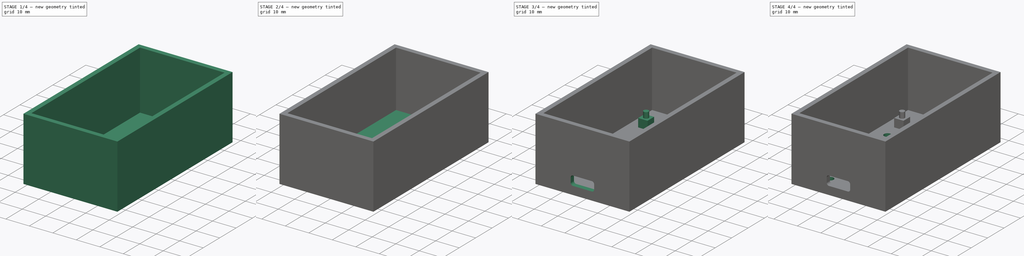
[diagram: build sequence overview — one tinted view per stage of 4, left to right]
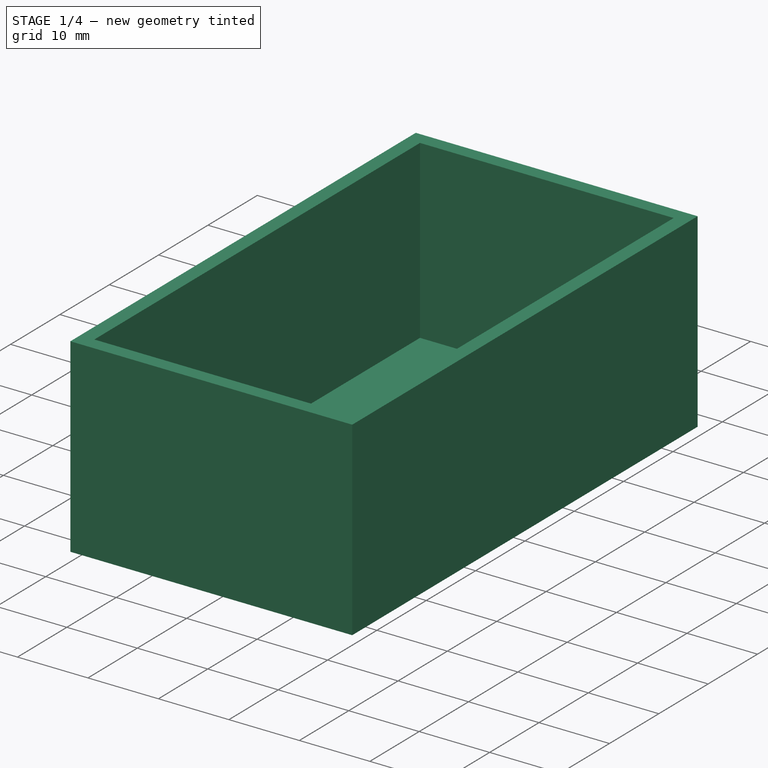
[diagram: stage 1 of 4 — iso view after this stage's code; geometry added in this stage tinted green]
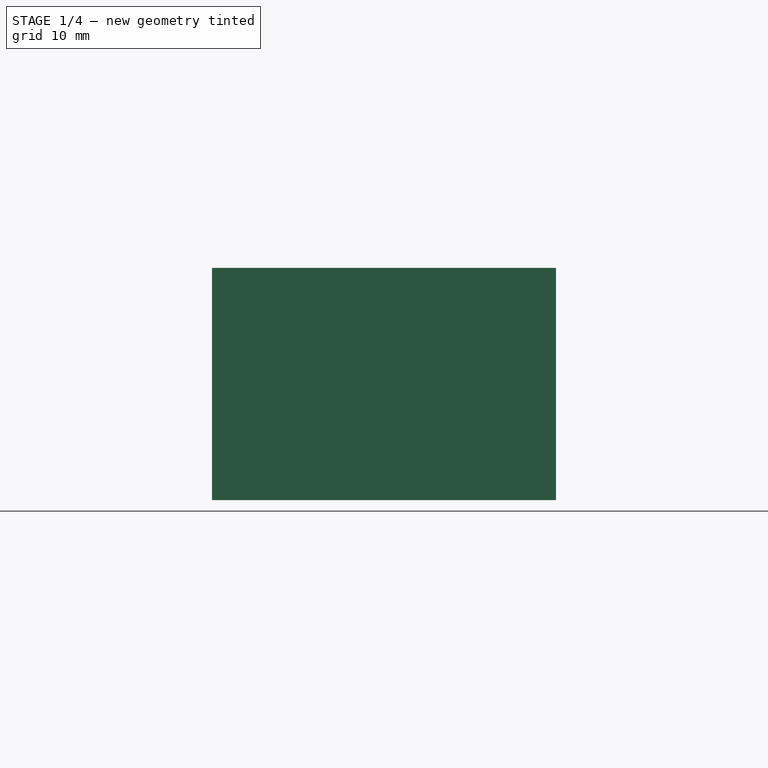
[diagram: stage 1 of 4 — front view after this stage's code; geometry added in this stage tinted green]
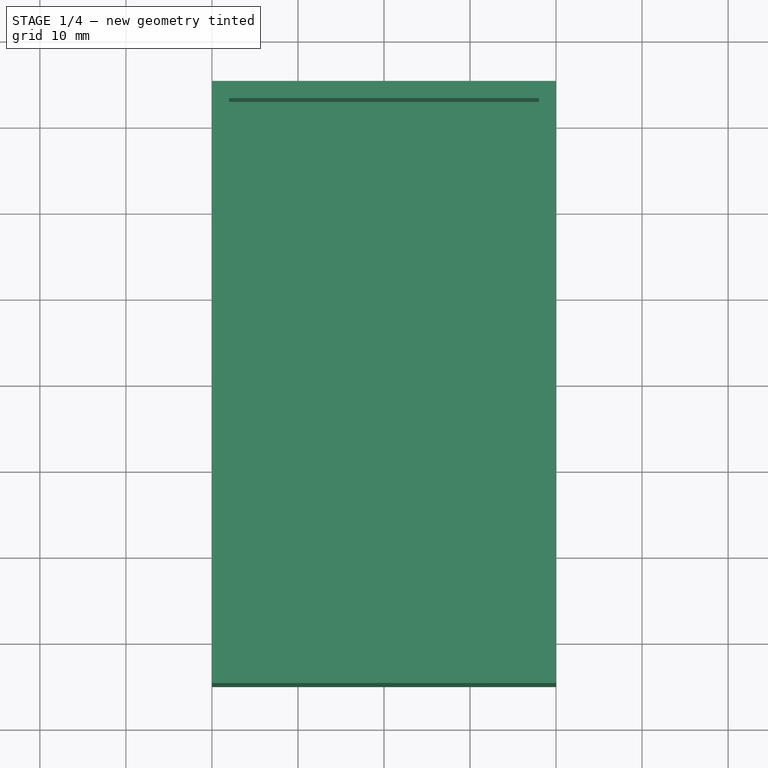
[diagram: stage 1 of 4 — top view after this stage's code; geometry added in this stage tinted green]
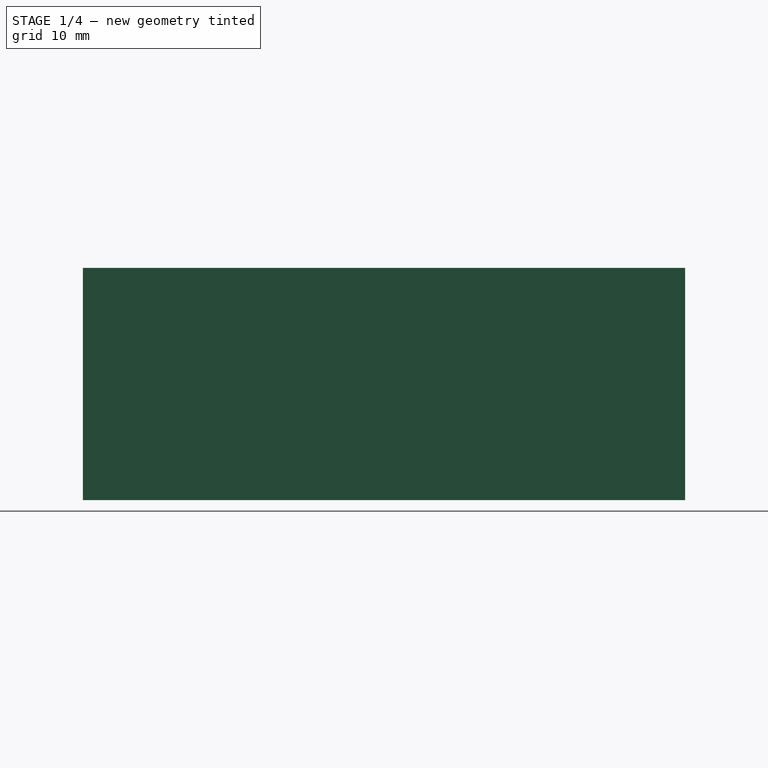
[diagram: stage 1 of 4 — right view after this stage's code; geometry added in this stage tinted green]
FCSTD DOCUMENT  (FreeCAD 2024.409R14555 (Git shallow))
Label: multi-sensor-hass-enclosure-realthunder
License: All rights reserved
LicenseURL: http://en.wikipedia.org/wiki/All_rights_reserved
objects: Sketcher::SketchObject×6, PartDesign::Pad×5, PartDesign::Pocket×3, PartDesign::Plane×2, PartDesign::Mirrored×2, PartDesign::Thickness×1, PartDesign::MultiTransform×1, PartDesign::Body×1
note: 51 computed .brp shape members not serialized (recipe doc carries the construction recipe); baked Part::Feature solids carry a one-line shape summary decoded from their .brp

FEATURE [Sketcher::SketchObject] Sketch
  ArcFitTolerance = 0
  AttachmentSupport = -> [XY_Plane]
  ExternalBSplineMaxDegree = 0
  ExternalBSplineTolerance = 0
  FullyConstrained = true
  InternalTolerance = 1e-06
  InvalidShape = false
  MakeInternals = false
  MapMode = 5
  TreeRank = 0
  ValidateShape = false
  sketch-geometry (5):
    g0: LineSegment StartX=-20 StartY=-35 StartZ=0 EndX=20 EndY=-35 EndZ=0
    g1: LineSegment StartX=20 StartY=-35 StartZ=0 EndX=20 EndY=35 EndZ=0
    g2: LineSegment StartX=20 StartY=35 StartZ=0 EndX=-20 EndY=35 EndZ=0
    g3: LineSegment StartX=-20 StartY=35 StartZ=0 EndX=-20 EndY=-35 EndZ=0
    g4: GeomPoint [constr] X=0 Y=0 Z=0
  constraints (12):
    c: Coincident(g0,g1)
    c: Coincident(g1,g2)
    c: Coincident(g2,g3)
    c: Coincident(g3,g0)
    c: Horizontal(g0)
    c: Horizontal(g2)
    c: Vertical(g1)
    c: Vertical(g3)
    c: Symmetric(g2,g0,g4)
    c: Distance(g1,g3) = 40
    c: Distance(g0,g2) = 70
    c: Coincident(g4,g-1)
FEATURE [PartDesign::Pad] Pad
  AddSubType = 0
  AutoTaperInnerAngle = true
  CheckUpToFaceLimits = true
  ClaimChildren = false
  Direction = (0,0,1)
  Fit = 0
  FitJoin = 0
  InnerFit = 0
  InnerFitJoin = 0
  InvalidShape = false
  Length = 27
  Length2 = 10
  NewSolid = false
  Profile = -> Sketch
  ReferenceAxis = -> Sketch [N_Axis]
  Suppress = false
  TaperInnerAngle = 0
  TaperInnerAngleRev = 0
  TreeRank = 0
  Type = 0
  ValidateShape = false
  _ProfileBasedVersion = 0
FEATURE [PartDesign::Thickness] Thickness
  AddSubType = 0
  Base = -> Pad [Face6]
  BaseFeature = -> Pad
  Intersection = false
  InvalidShape = false
  Join = 0
  MakeOffset = false
  Mode = 0
  NewSolid = false
  Reversed = true
  SupportTransform = false
  Suppress = false
  TreeRank = 0
  ValidateShape = false
  Value = 2
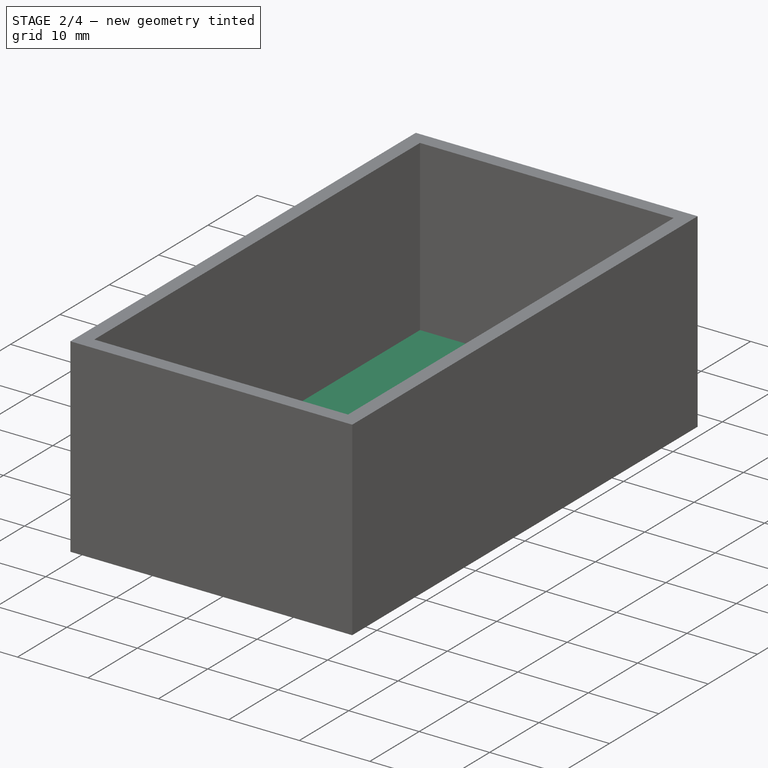
[diagram: stage 2 of 4 — iso view after this stage's code; geometry added in this stage tinted green]
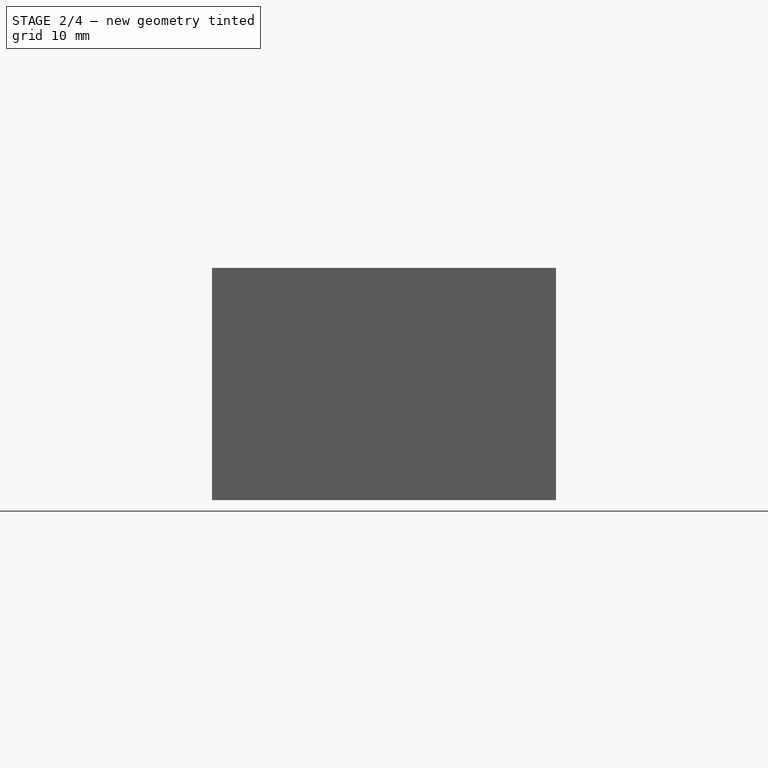
[diagram: stage 2 of 4 — front view after this stage's code; geometry added in this stage tinted green]
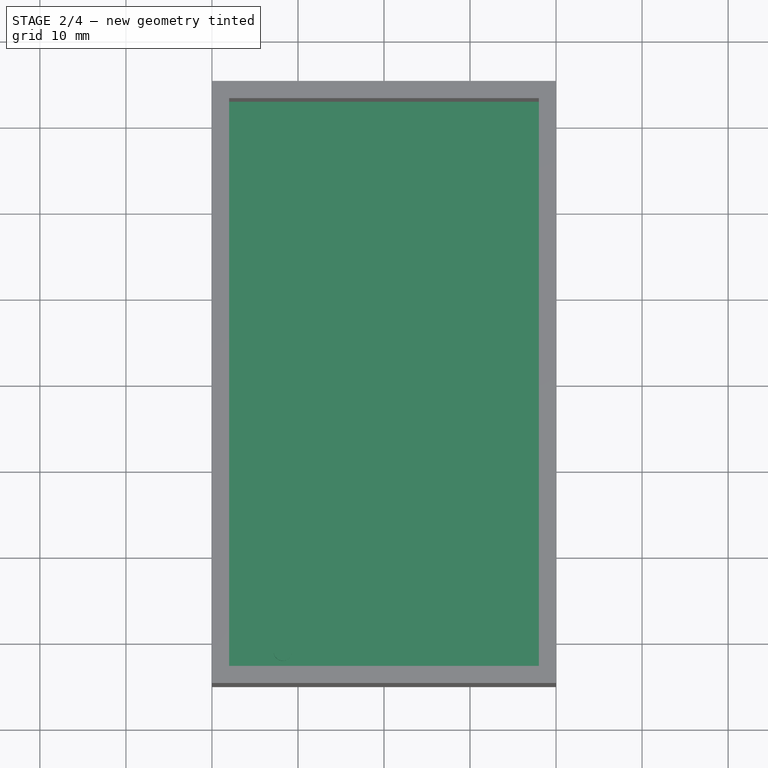
[diagram: stage 2 of 4 — top view after this stage's code; geometry added in this stage tinted green]
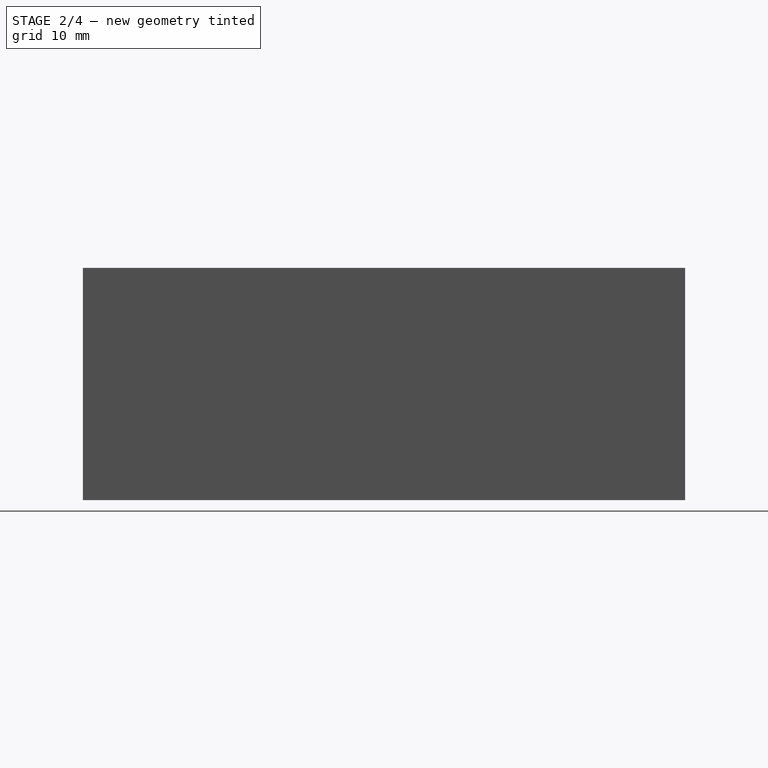
[diagram: stage 2 of 4 — right view after this stage's code; geometry added in this stage tinted green]
FEATURE [PartDesign::Pad] Pad001
  AddSubType = 0
  AutoTaperInnerAngle = true
  BaseFeature = -> Thickness
  CheckUpToFaceLimits = true
  ClaimChildren = false
  Direction = (0,0,1)
  Fit = 0
  FitJoin = 0
  InnerFit = 0
  InnerFitJoin = 0
  InvalidShape = false
  Length = 1
  Length2 = 10
  NewSolid = false
  Profile = -> Thickness [Face11]
  Suppress = false
  TaperInnerAngle = 0
  TaperInnerAngleRev = 0
  TreeRank = 0
  Type = 0
  ValidateShape = false
  _ProfileBasedVersion = 0
FEATURE [Sketcher::SketchObject] Sketch001
  ArcFitTolerance = 0
  AttachmentSupport = -> [Pad001]
  ExternalBSplineMaxDegree = 0
  ExternalBSplineTolerance = 0
  ExternalGeometry = -> [Pad001]
  FullyConstrained = true
  InternalTolerance = 1e-06
  InvalidShape = false
  MakeInternals = false
  MapMode = 5
  Placement = pos=(0,0,3) rot=(0,0,1;0rad)
  Support = -> [Pad001]
  TreeRank = 0
  ValidateShape = false
  sketch-geometry (4):
    g0: LineSegment StartX=-13.75 StartY=-33 StartZ=0 EndX=-9.75 EndY=-33 EndZ=0
    g1: LineSegment StartX=-9.75 StartY=-33 StartZ=0 EndX=-9.75 EndY=-29 EndZ=0
    g2: LineSegment StartX=-9.75 StartY=-29 StartZ=0 EndX=-13.75 EndY=-29 EndZ=0
    g3: LineSegment StartX=-13.75 StartY=-29 StartZ=0 EndX=-13.75 EndY=-33 EndZ=0
  constraints (12):
    c: Coincident(g0,g1)
    c: Coincident(g1,g2)
    c: Coincident(g2,g3)
    c: Coincident(g3,g0)
    c: Horizontal(g0)
    c: Horizontal(g2)
    c: Vertical(g1)
    c: Vertical(g3)
    c: PointOnObject(g0,g-3)
    c: DistanceY(g1,g1) = 4
    c: Distance(g0,g0) = 4
    c: Distance(g1,g-2) = 9.75
FEATURE [PartDesign::Pad] Pad002
  AddSubType = 0
  AutoTaperInnerAngle = true
  BaseFeature = -> Pad001
  CheckUpToFaceLimits = true
  ClaimChildren = false
  Direction = (0,0,1)
  Fit = 0
  FitJoin = 0
  InnerFit = 0
  InnerFitJoin = 0
  InvalidShape = false
  Length = 3.6
  Length2 = 10
  NewSolid = false
  Profile = -> Sketch001
  ReferenceAxis = -> Sketch001 [N_Axis]
  Suppress = false
  TaperInnerAngle = 0
  TaperInnerAngleRev = 0
  TreeRank = 0
  Type = 0
  ValidateShape = false
  _ProfileBasedVersion = 0
FEATURE [Sketcher::SketchObject] Sketch002
  ArcFitTolerance = 0
  AttachmentSupport = -> [Pad002]
  ExternalBSplineMaxDegree = 0
  ExternalBSplineTolerance = 0
  ExternalGeometry = -> [Pad002]
  FullyConstrained = true
  InternalTolerance = 1e-06
  InvalidShape = false
  MakeInternals = false
  MapMode = 5
  Placement = pos=(0,0,6.6) rot=(0,0,1;0rad)
  Support = -> [Pad002]
  TreeRank = 0
  ValidateShape = false
  sketch-geometry (1):
    g0: Circle CenterX=-11.75 CenterY=-31 CenterZ=0 NormalX=0 NormalY=0 NormalZ=1 AngleXU=0 Radius=1.075
  constraints (2):
    c: Symmetric(g-4,g-5,g0)
    c: Diameter(g0) = 2.15
FEATURE [PartDesign::Pad] Pad003
  AddSubType = 0
  AutoTaperInnerAngle = true
  BaseFeature = -> Pad002
  CheckUpToFaceLimits = true
  ClaimChildren = false
  Direction = (0,0,1)
  Fit = 0
  FitJoin = 0
  InnerFit = 0
  InnerFitJoin = 0
  InvalidShape = false
  Length = 1
  Length2 = 10
  NewSolid = false
  Profile = -> Sketch002
  ReferenceAxis = -> Sketch002 [N_Axis]
  Suppress = false
  TaperInnerAngle = 0
  TaperInnerAngleRev = 0
  TreeRank = 0
  Type = 0
  ValidateShape = false
  _ProfileBasedVersion = 0
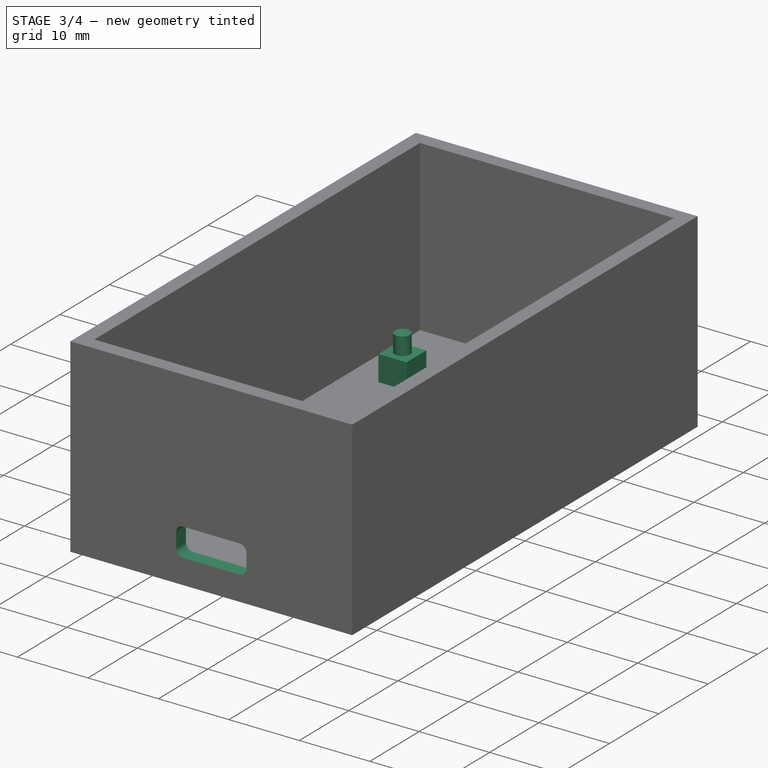
[diagram: stage 3 of 4 — iso view after this stage's code; geometry added in this stage tinted green]
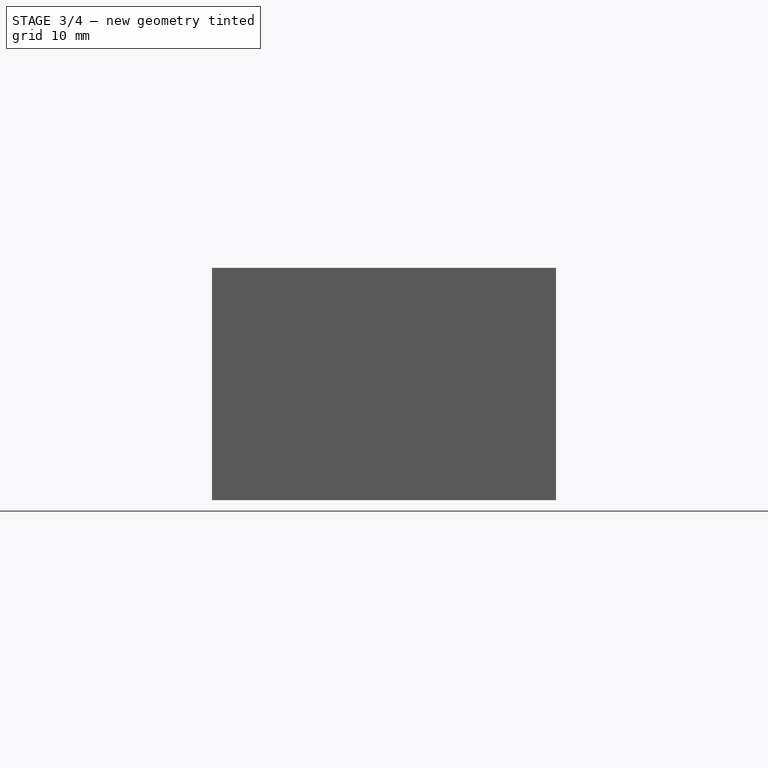
[diagram: stage 3 of 4 — front view after this stage's code; geometry added in this stage tinted green]
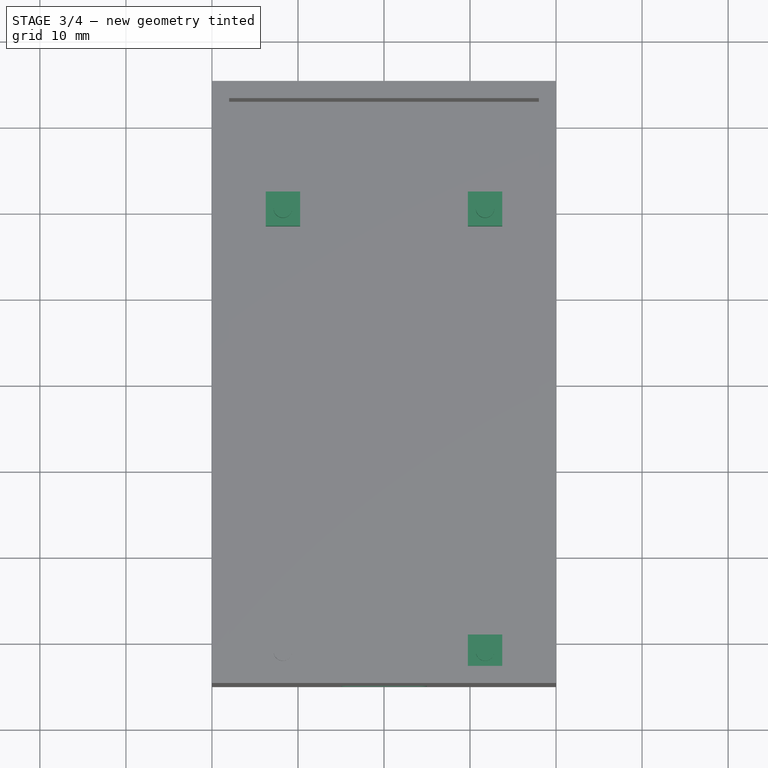
[diagram: stage 3 of 4 — top view after this stage's code; geometry added in this stage tinted green]
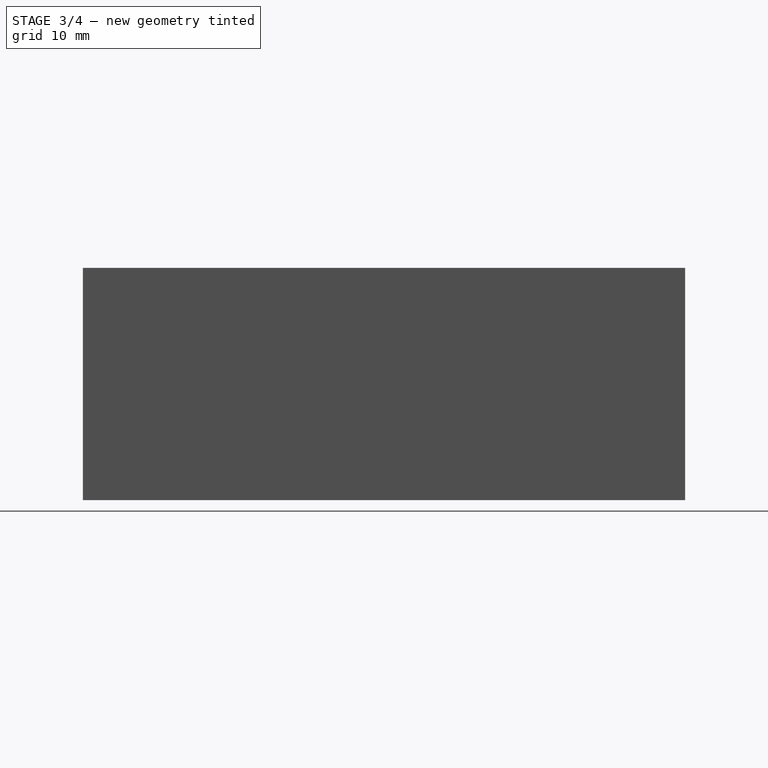
[diagram: stage 3 of 4 — right view after this stage's code; geometry added in this stage tinted green]
FEATURE [PartDesign::Plane] DatumPlane
  AttachmentOffset = pos=(0,0,5.25) rot=(0,0,1;0rad)
  InvalidShape = false
  Length = 10
  MapMode = 5
  MinimumLength = 10
  MinimumWidth = 10
  Placement = pos=(0,-5.25,1.2e-15) rot=(1,0,0;1.5708rad)
  ResizeMode = 0
  TreeRank = 0
  ValidateShape = false
  Width = 10
FEATURE [PartDesign::Mirrored] Mirrored
  AddSubType = 0
  CopyShape = true
  InvalidShape = false
  MirrorPlane = -> Sketch001 [V_Axis]
  NewSolid = false
  ParallelTransform = true
  SubTransform = true
  Suppress = false
  TreeRank = 0
  ValidateShape = false
  _Version = 0
FEATURE [PartDesign::Mirrored] Mirrored001
  AddSubType = 0
  CopyShape = true
  InvalidShape = false
  MirrorPlane = -> DatumPlane
  NewSolid = false
  ParallelTransform = true
  SubTransform = true
  Suppress = false
  TreeRank = 0
  ValidateShape = false
  _Version = 0
FEATURE [PartDesign::MultiTransform] MultiTransform
  AddSubType = 0
  BaseFeature = -> Pad003
  CopyShape = true
  InvalidShape = false
  NewSolid = false
  OriginalSubs = -> [Pad002,Pad003]
  Originals = -> [Pad002,Pad003]
  ParallelTransform = true
  SubTransform = true
  Suppress = false
  Transformations = -> [Mirrored,Mirrored001]
  TreeRank = 0
  ValidateShape = false
  _Version = 0
FEATURE [Sketcher::SketchObject] Sketch003
  ArcFitTolerance = 0
  AttachmentSupport = -> [MultiTransform]
  ExternalBSplineMaxDegree = 0
  ExternalBSplineTolerance = 0
  FullyConstrained = true
  InternalTolerance = 1e-06
  InvalidShape = false
  MakeInternals = false
  MapMode = 5
  Placement = pos=(0,-35,0) rot=(1,0,0;1.5708rad)
  Support = -> [MultiTransform]
  TreeRank = 0
  ValidateShape = false
  sketch-geometry (10):
    g0: LineSegment StartX=-5 StartY=6.5 StartZ=0 EndX=-5 EndY=4.5 EndZ=0
    g1: LineSegment StartX=-4 StartY=3.5 StartZ=0 EndX=4 EndY=3.5 EndZ=0
    g2: LineSegment StartX=5 StartY=4.5 StartZ=0 EndX=5 EndY=6.5 EndZ=0
    g3: LineSegment StartX=4 StartY=7.5 StartZ=0 EndX=-4 EndY=7.5 EndZ=0
    g4: ArcOfCircle CenterX=-4 CenterY=6.5 CenterZ=0 NormalX=0 NormalY=0 NormalZ=1 AngleXU=0 Radius=1 StartAngle=1.5708 EndAngle=3.14159
    g5: ArcOfCircle CenterX=-4 CenterY=4.5 CenterZ=0 NormalX=0 NormalY=0 NormalZ=1 AngleXU=0 Radius=1 StartAngle=3.14159 EndAngle=4.71239
    g6: ArcOfCircle CenterX=4 CenterY=4.5 CenterZ=0 NormalX=0 NormalY=0 NormalZ=1 AngleXU=0 Radius=1 StartAngle=4.71239 EndAngle=6.28319
    g7: ArcOfCircle CenterX=4 CenterY=6.5 CenterZ=0 NormalX=0 NormalY=0 NormalZ=1 AngleXU=0 Radius=1 StartAngle=2e-16 EndAngle=1.5708
    g8: GeomPoint [constr] X=-5 Y=7.5 Z=0
    g9: GeomPoint [constr] X=5 Y=3.5 Z=0
  constraints (23):
    c: Tangent(g0,g4) = -1.5708
    c: Tangent(g0,g5) = -1.5708
    c: Tangent(g1,g5) = -1.5708
    c: Tangent(g1,g6) = -1.5708
    c: Tangent(g2,g6) = -1.5708
    c: Tangent(g2,g7) = -1.5708
    c: Tangent(g3,g7) = -1.5708
    c: Tangent(g3,g4) = -1.5708
    c: Vertical(g0)
    c: Vertical(g2)
    c: Horizontal(g1)
    c: Horizontal(g3)
    c: Equal(g4,g5)
    c: Equal(g5,g6)
    c: PointOnObject(g8,g0)
    c: PointOnObject(g8,g3)
    c: PointOnObject(g9,g1)
    c: PointOnObject(g9,g2)
    c: Radius(g5) = 1
    c: Distance(g2,g2) = 2
    c: DistanceX(g3,g3) = 8
    c: Symmetric(g0,g2,g-2)
    c: Distance(g-1,g3) = 7.5
FEATURE [PartDesign::Pocket] Pocket
  AddSubType = 1
  AlongSketchNormal = false
  AutoTaperInnerAngle = true
  BaseFeature = -> MultiTransform
  CheckUpToFaceLimits = true
  ClaimChildren = false
  Direction = (-1e-16,-1,1e-16)
  Fit = 0
  FitJoin = 0
  InnerFit = 0
  InnerFitJoin = 0
  InvalidShape = false
  Length = 5
  Length2 = 5
  NewSolid = false
  Profile = -> Sketch003
  ReferenceAxis = -> Y_Axis
  Reversed = true
  Suppress = false
  TaperInnerAngle = 0
  TaperInnerAngleRev = 0
  TreeRank = 0
  Type = 0
  ValidateShape = false
  _ProfileBasedVersion = 0
  _Version = 0
FEATURE [PartDesign::Pad] Pad004
  AddSubType = 0
  AutoTaperInnerAngle = true
  BaseFeature = -> Pocket
  CheckUpToFaceLimits = true
  ClaimChildren = false
  Direction = (0,4e-16,1)
  Fit = 0
  FitJoin = 0
  InnerFit = 0
  InnerFitJoin = 0
  InvalidShape = false
  Length = 1.5
  Length2 = 10
  NewSolid = false
  Profile = -> Pocket [Face44,Face45]
  Suppress = false
  TaperInnerAngle = 0
  TaperInnerAngleRev = 0
  TreeRank = 0
  Type = 0
  ValidateShape = false
  _ProfileBasedVersion = 0
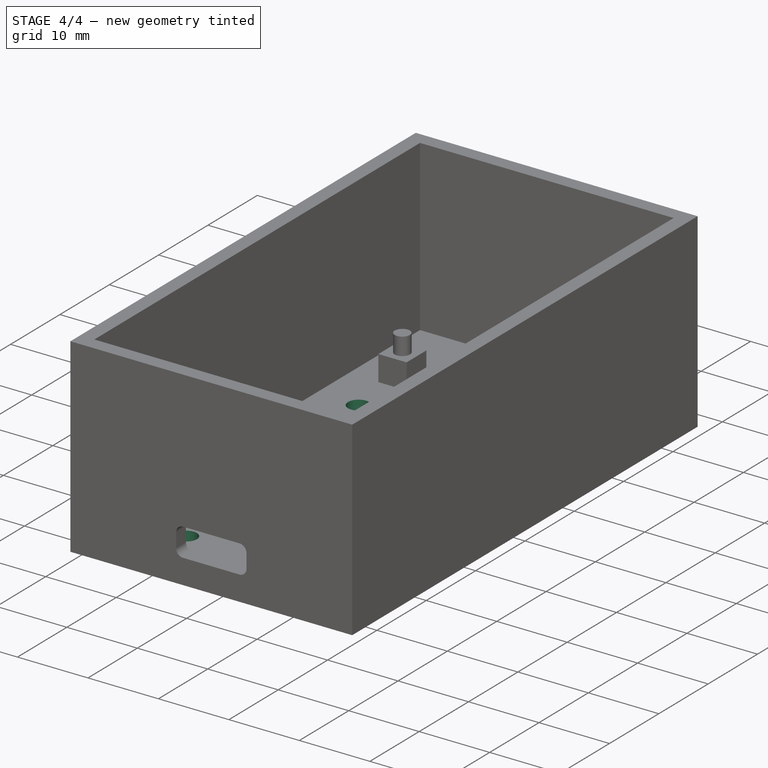
[diagram: stage 4 of 4 — iso view after this stage's code; geometry added in this stage tinted green]
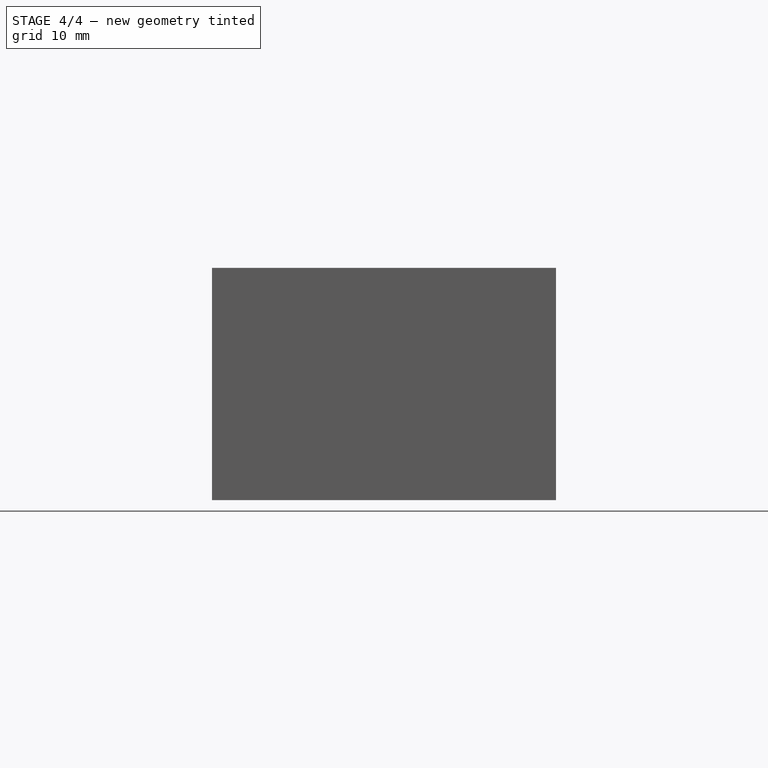
[diagram: stage 4 of 4 — front view after this stage's code; geometry added in this stage tinted green]
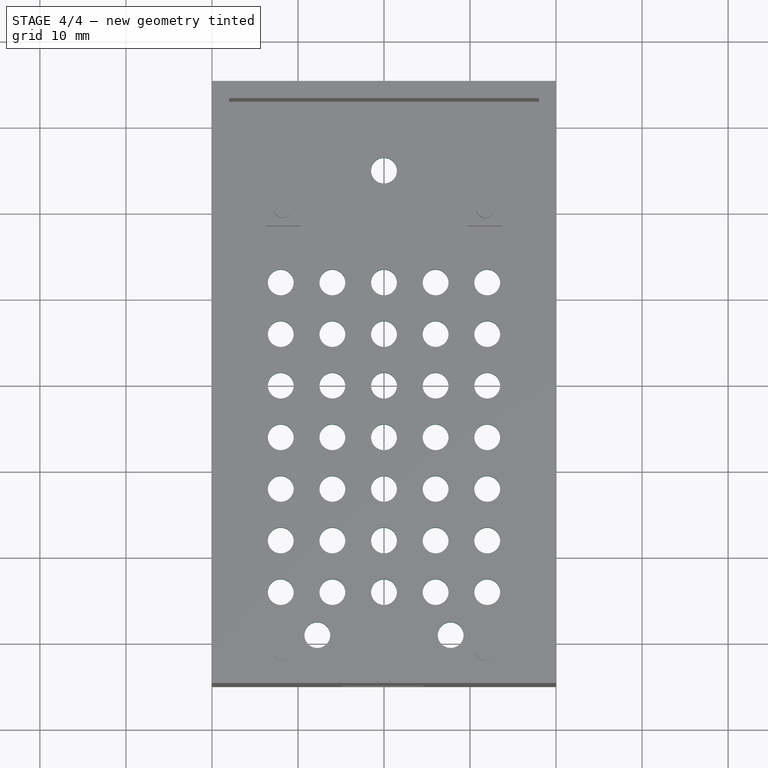
[diagram: stage 4 of 4 — top view after this stage's code; geometry added in this stage tinted green]
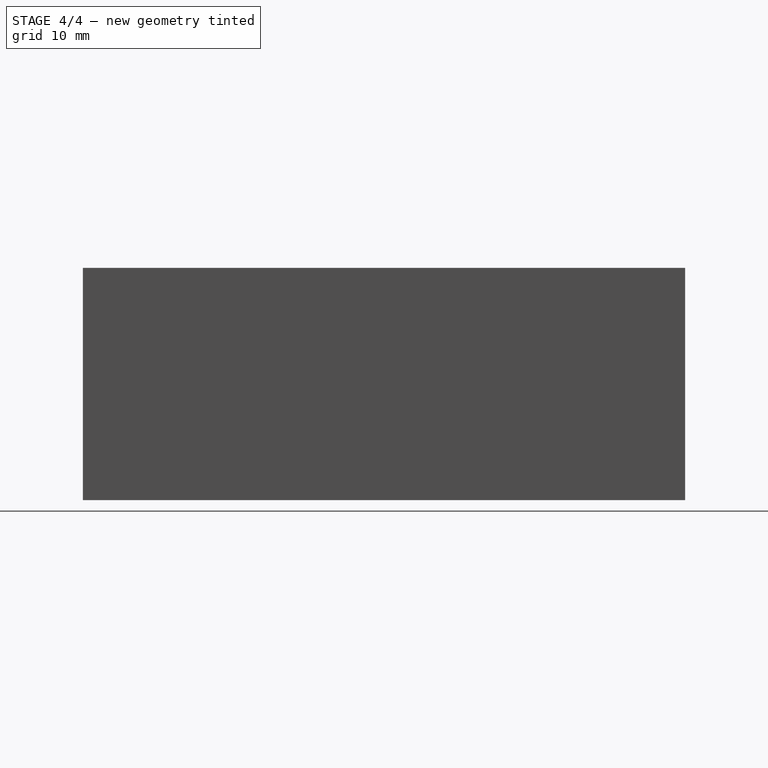
[diagram: stage 4 of 4 — right view after this stage's code; geometry added in this stage tinted green]
FEATURE [PartDesign::Plane] DatumPlane001
  InvalidShape = false
  Length = 40
  MapMode = 5
  MinimumLength = 10
  MinimumWidth = 10
  Placement = pos=(0,33,0) rot=(1,0,0;1.5708rad)
  ResizeMode = 0
  TreeRank = 0
  ValidateShape = false
  Width = 27
FEATURE [Sketcher::SketchObject] Sketch006
  ArcFitTolerance = 1e-06
  AttachmentSupport = -> [Pad004]
  ExternalBSplineMaxDegree = 5
  ExternalBSplineTolerance = 0.0001
  FullyConstrained = true
  InternalTolerance = 1e-06
  InvalidShape = false
  MakeInternals = false
  MapMode = 5
  Placement = pos=(0,0,3) rot=(0,0,1;0rad)
  Support = -> [Pad004]
  TreeRank = 1
  ValidateShape = false
  sketch-geometry (3):
    g0: Circle CenterX=0 CenterY=25 CenterZ=0 NormalX=0 NormalY=0 NormalZ=1 AngleXU=0 Radius=1.5
    g1: Circle CenterX=-7.75 CenterY=-29 CenterZ=0 NormalX=0 NormalY=0 NormalZ=1 AngleXU=0 Radius=1.5
    g2: Circle CenterX=7.75 CenterY=-29 CenterZ=0 NormalX=0 NormalY=0 NormalZ=1 AngleXU=0 Radius=1.5
  constraints (8):
    c: PointOnObject(g0,g-2)
    c: Diameter(g0) = 3
    c: DistanceY(g-1,g0) = 25
    c: Equal(g1,g2)
    c: Symmetric(g1,g2,g-2)
    c: Diameter(g1) = 3
    c: DistanceY(g1,g-1) = 29
    c: DistanceX(g1,g-1) = 7.75
FEATURE [PartDesign::Pocket] Pocket001
  AddSubType = 1
  AlongSketchNormal = false
  AutoTaperInnerAngle = true
  BaseFeature = -> Pad004
  CheckUpToFaceLimits = true
  ClaimChildren = false
  Direction = (0,0,-1)
  Fit = 0
  FitJoin = 0
  InnerFit = 0
  InnerFitJoin = 0
  InvalidShape = false
  Length = 0
  Length2 = 10
  Linearize = true
  NewSolid = false
  Profile = -> Sketch006
  ReferenceAxis = -> Sketch006 [N_Axis]
  Suppress = false
  TaperInnerAngle = 0
  TaperInnerAngleRev = 0
  TreeRank = 2
  Type = 3
  UpToFace = -> Pad004 [Face3]
  ValidateShape = false
  _ProfileBasedVersion = 1
  _Version = 1
FEATURE [Sketcher::SketchObject] Sketch007
  ArcFitTolerance = 1e-06
  AttachmentSupport = -> [Pocket001]
  ExternalBSplineMaxDegree = 5
  ExternalBSplineTolerance = 0.0001
  FullyConstrained = true
  InternalTolerance = 1e-06
  InvalidShape = false
  MakeInternals = false
  MapMode = 5
  Placement = pos=(0,0,3) rot=(0,0,1;0rad)
  Support = -> [Pocket001]
  TreeRank = 3
  ValidateShape = false
  sketch-geometry (69):
    g0: Circle CenterX=-12 CenterY=12 CenterZ=0 NormalX=0 NormalY=0 NormalZ=1 AngleXU=0 Radius=1.5
    g1: Circle CenterX=-6 CenterY=12 CenterZ=0 NormalX=0 NormalY=0 NormalZ=1 AngleXU=0 Radius=1.5
    g2: LineSegment [constr] StartX=-12 StartY=12 StartZ=0 EndX=-6 EndY=12 EndZ=0
    g3: Circle CenterX=-3e-16 CenterY=12 CenterZ=0 NormalX=0 NormalY=0 NormalZ=1 AngleXU=0 Radius=1.5
    g4: LineSegment [constr] StartX=-6 StartY=12 StartZ=0 EndX=0 EndY=12 EndZ=0
    g5: Circle CenterX=6 CenterY=12 CenterZ=0 NormalX=0 NormalY=0 NormalZ=1 AngleXU=0 Radius=1.5
    g6: LineSegment [constr] StartX=-3e-16 StartY=12 StartZ=0 EndX=6 EndY=12 EndZ=0
    g7: Circle CenterX=12 CenterY=12 CenterZ=0 NormalX=0 NormalY=0 NormalZ=1 AngleXU=0 Radius=1.5
    g8: LineSegment [constr] StartX=6 StartY=12 StartZ=0 EndX=12 EndY=12 EndZ=0
    g9: Circle CenterX=-12 CenterY=6 CenterZ=0 NormalX=0 NormalY=0 NormalZ=1 AngleXU=0 Radius=1.5
    g10: LineSegment [constr] StartX=-12 StartY=12 StartZ=0 EndX=-12 EndY=6 EndZ=0
    g11: Circle CenterX=-6 CenterY=6 CenterZ=0 NormalX=0 NormalY=0 NormalZ=1 AngleXU=0 Radius=1.5
    g12: LineSegment [constr] StartX=-12 StartY=6 StartZ=0 EndX=-6 EndY=6 EndZ=0
    g13: Circle CenterX=1e-16 CenterY=6 CenterZ=0 NormalX=0 NormalY=0 NormalZ=1 AngleXU=0 Radius=1.5
    g14: LineSegment [constr] StartX=-6 StartY=6 StartZ=0 EndX=0 EndY=6 EndZ=0
    g15: Circle CenterX=6 CenterY=6 CenterZ=0 NormalX=0 NormalY=0 NormalZ=1 AngleXU=0 Radius=1.5
    g16: LineSegment [constr] StartX=1e-16 StartY=6 StartZ=0 EndX=6 EndY=6 EndZ=0
    g17: Circle CenterX=12 CenterY=6 CenterZ=0 NormalX=0 NormalY=0 NormalZ=1 AngleXU=0 Radius=1.5
    g18: LineSegment [constr] StartX=6 StartY=6 StartZ=0 EndX=12 EndY=6 EndZ=0
    g19: Circle CenterX=-12 CenterY=0 CenterZ=0 NormalX=0 NormalY=0 NormalZ=1 AngleXU=0 Radius=1.5
    g20: LineSegment [constr] StartX=-12 StartY=6 StartZ=0 EndX=-12 EndY=0 EndZ=0
    g21: Circle CenterX=-6 CenterY=0 CenterZ=0 NormalX=0 NormalY=0 NormalZ=1 AngleXU=0 Radius=1.5
    g22: LineSegment [constr] StartX=-12 StartY=0 StartZ=0 EndX=-6 EndY=0 EndZ=0
    g23: Circle CenterX=-3e-16 CenterY=0 CenterZ=0 NormalX=0 NormalY=0 NormalZ=1 AngleXU=0 Radius=1.5
    g24: LineSegment [constr] StartX=-6 StartY=0 StartZ=0 EndX=0 EndY=0 EndZ=0
    g25: Circle CenterX=6 CenterY=0 CenterZ=0 NormalX=0 NormalY=0 NormalZ=1 AngleXU=0 Radius=1.5
    g26: LineSegment [constr] StartX=-3e-16 StartY=0 StartZ=0 EndX=6 EndY=0 EndZ=0
    g27: Circle CenterX=12 CenterY=0 CenterZ=0 NormalX=0 NormalY=0 NormalZ=1 AngleXU=0 Radius=1.5
    g28: LineSegment [constr] StartX=6 StartY=0 StartZ=0 EndX=12 EndY=0 EndZ=0
    g29: Circle CenterX=-12 CenterY=-6 CenterZ=0 NormalX=0 NormalY=0 NormalZ=1 AngleXU=0 Radius=1.5
    g30: LineSegment [constr] StartX=-12 StartY=0 StartZ=0 EndX=-12 EndY=-6 EndZ=0
    g31: Circle CenterX=-6 CenterY=-6 CenterZ=0 NormalX=0 NormalY=0 NormalZ=1 AngleXU=0 Radius=1.5
    g32: LineSegment [constr] StartX=-12 StartY=-6 StartZ=0 EndX=-6 EndY=-6 EndZ=0
    g33: Circle CenterX=-4e-16 CenterY=-6 CenterZ=0 NormalX=0 NormalY=0 NormalZ=1 AngleXU=0 Radius=1.5
    g34: LineSegment [constr] StartX=-6 StartY=-6 StartZ=0 EndX=0 EndY=-6 EndZ=0
    g35: Circle CenterX=6 CenterY=-6 CenterZ=0 NormalX=0 NormalY=0 NormalZ=1 AngleXU=0 Radius=1.5
    g36: LineSegment [constr] StartX=-4e-16 StartY=-6 StartZ=0 EndX=6 EndY=-6 EndZ=0
    g37: Circle CenterX=12 CenterY=-6 CenterZ=0 NormalX=0 NormalY=0 NormalZ=1 AngleXU=0 Radius=1.5
    g38: LineSegment [constr] StartX=6 StartY=-6 StartZ=0 EndX=12 EndY=-6 EndZ=0
    g39: Circle CenterX=-12 CenterY=-12 CenterZ=0 NormalX=0 NormalY=0 NormalZ=1 AngleXU=0 Radius=1.5
    g40: LineSegment [constr] StartX=-12 StartY=-6 StartZ=0 EndX=-12 EndY=-12 EndZ=0
    g41: Circle CenterX=-6 CenterY=-12 CenterZ=0 NormalX=0 NormalY=0 NormalZ=1 AngleXU=0 Radius=1.5
    g42: LineSegment [constr] StartX=-12 StartY=-12 StartZ=0 EndX=-6 EndY=-12 EndZ=0
    g43: Circle CenterX=-4e-16 CenterY=-12 CenterZ=0 NormalX=0 NormalY=0 NormalZ=1 AngleXU=0 Radius=1.5
    g44: LineSegment [constr] StartX=-6 StartY=-12 StartZ=0 EndX=0 EndY=-12 EndZ=0
    g45: Circle CenterX=6 CenterY=-12 CenterZ=0 NormalX=0 NormalY=0 NormalZ=1 AngleXU=0 Radius=1.5
    g46: LineSegment [constr] StartX=-4e-16 StartY=-12 StartZ=0 EndX=6 EndY=-12 EndZ=0
    g47: Circle CenterX=12 CenterY=-12 CenterZ=0 NormalX=0 NormalY=0 NormalZ=1 AngleXU=0 Radius=1.5
    g48: LineSegment [constr] StartX=6 StartY=-12 StartZ=0 EndX=12 EndY=-12 EndZ=0
    g49: Circle CenterX=-12 CenterY=-18 CenterZ=0 NormalX=0 NormalY=0 NormalZ=1 AngleXU=0 Radius=1.5
    g50: LineSegment [constr] StartX=-12 StartY=-12 StartZ=0 EndX=-12 EndY=-18 EndZ=0
    g51: Circle CenterX=-6 CenterY=-18 CenterZ=0 NormalX=0 NormalY=0 NormalZ=1 AngleXU=0 Radius=1.5
    g52: LineSegment [constr] StartX=-12 StartY=-18 StartZ=0 EndX=-6 EndY=-18 EndZ=0
    g53: Circle CenterX=0 CenterY=-18 CenterZ=0 NormalX=0 NormalY=0 NormalZ=1 AngleXU=0 Radius=1.5
    g54: LineSegment [constr] StartX=-6 StartY=-18 StartZ=0 EndX=0 EndY=-18 EndZ=0
    g55: Circle CenterX=6 CenterY=-18 CenterZ=0 NormalX=0 NormalY=0 NormalZ=1 AngleXU=0 Radius=1.5
    g56: LineSegment [constr] StartX=0 StartY=-18 StartZ=0 EndX=6 EndY=-18 EndZ=0
    g57: Circle CenterX=12 CenterY=-18 CenterZ=0 NormalX=0 NormalY=0 NormalZ=1 AngleXU=0 Radius=1.5
    g58: LineSegment [constr] StartX=6 StartY=-18 StartZ=0 EndX=12 EndY=-18 EndZ=0
    g59: Circle CenterX=-12 CenterY=-24 CenterZ=0 NormalX=0 NormalY=0 NormalZ=1 AngleXU=0 Radius=1.5
    g60: LineSegment [constr] StartX=-12 StartY=-18 StartZ=0 EndX=-12 EndY=-24 EndZ=0
    g61: Circle CenterX=-6 CenterY=-24 CenterZ=0 NormalX=0 NormalY=0 NormalZ=1 AngleXU=0 Radius=1.5
    g62: LineSegment [constr] StartX=-12 StartY=-24 StartZ=0 EndX=-6 EndY=-24 EndZ=0
    g63: Circle CenterX=-1e-16 CenterY=-24 CenterZ=0 NormalX=0 NormalY=0 NormalZ=1 AngleXU=0 Radius=1.5
    g64: LineSegment [constr] StartX=-6 StartY=-24 StartZ=0 EndX=0 EndY=-24 EndZ=0
    g65: Circle CenterX=6 CenterY=-24 CenterZ=0 NormalX=0 NormalY=0 NormalZ=1 AngleXU=0 Radius=1.5
    g66: LineSegment [constr] StartX=-1e-16 StartY=-24 StartZ=0 EndX=6 EndY=-24 EndZ=0
    g67: Circle CenterX=12 CenterY=-24 CenterZ=0 NormalX=0 NormalY=0 NormalZ=1 AngleXU=0 Radius=1.5
    g68: LineSegment [constr] StartX=6 StartY=-24 StartZ=0 EndX=12 EndY=-24 EndZ=0
  constraints (173):
    c: Diameter(g0) = 3
    c: DistanceX(g0,g-1) = 12
    c: DistanceY(g-1,g0) = 12
    c: Diameter(g1) = 3
    c: Coincident(g0,g2)
    c: Coincident(g1,g2)
    c: Distance(g2) = 6
    c: Angle(g2) = 0
    c: Diameter(g3) = 3
    c: Coincident(g1,g4)
    c: Coincident(g3,g4)
    c: Equal(g2,g4)
    c: Parallel(g4,g2)
    c: Diameter(g5) = 3
    c: Coincident(g3,g6)
    c: Coincident(g5,g6)
    c: Equal(g2,g6)
    c: Parallel(g6,g2)
    c: Diameter(g7) = 3
    c: Coincident(g5,g8)
    c: Coincident(g7,g8)
    c: Equal(g2,g8)
    c: Parallel(g8,g2)
    c: Diameter(g9) = 3
    c: Coincident(g0,g10)
    c: Coincident(g9,g10)
    c: Equal(g10,g2)
    c: Perpendicular(g10,g2)
    c: Diameter(g11) = 3
    c: Coincident(g9,g12)
    c: Coincident(g11,g12)
    c: Equal(g2,g12)
    c: Parallel(g12,g2)
    c: Diameter(g13) = 3
    c: Coincident(g11,g14)
    c: Coincident(g13,g14)
    c: Equal(g2,g14)
    c: Parallel(g14,g2)
    c: Diameter(g15) = 3
    c: Coincident(g13,g16)
    c: Coincident(g15,g16)
    c: Equal(g2,g16)
    c: Parallel(g16,g2)
    c: Diameter(g17) = 3
    c: Coincident(g15,g18)
    c: Coincident(g17,g18)
    c: Equal(g2,g18)
    c: Parallel(g18,g2)
    c: Diameter(g19) = 3
    c: Coincident(g9,g20)
    c: Coincident(g19,g20)
    c: Equal(g10,g20)
    c: Perpendicular(g20,g2)
    c: Diameter(g21) = 3
    c: Coincident(g19,g22)
    c: Coincident(g21,g22)
    c: Equal(g2,g22)
    c: Parallel(g22,g2)
    c: Diameter(g23) = 3
    c: Coincident(g21,g24)
    c: Coincident(g23,g24)
    c: Equal(g2,g24)
    c: Parallel(g24,g2)
    c: Diameter(g25) = 3
    c: Coincident(g23,g26)
    c: Coincident(g25,g26)
    c: Equal(g2,g26)
    c: Parallel(g26,g2)
    c: Diameter(g27) = 3
    c: Coincident(g25,g28)
    c: Coincident(g27,g28)
    c: Equal(g2,g28)
    c: Parallel(g28,g2)
    c: Diameter(g29) = 3
    c: Coincident(g19,g30)
    c: Coincident(g29,g30)
    c: Equal(g10,g30)
    c: Perpendicular(g30,g2)
    c: Diameter(g31) = 3
    c: Coincident(g29,g32)
    c: Coincident(g31,g32)
    c: Equal(g2,g32)
    c: Parallel(g32,g2)
    c: Diameter(g33) = 3
    c: Coincident(g31,g34)
    c: Coincident(g33,g34)
    c: Equal(g2,g34)
    c: Parallel(g34,g2)
    c: Diameter(g35) = 3
    c: Coincident(g33,g36)
    c: Coincident(g35,g36)
    c: Equal(g2,g36)
    c: Parallel(g36,g2)
    c: Diameter(g37) = 3
    c: Coincident(g35,g38)
    c: Coincident(g37,g38)
    c: Equal(g2,g38)
    c: Parallel(g38,g2)
    c: Diameter(g39) = 3
    c: Coincident(g29,g40)
    c: Coincident(g39,g40)
    c: Equal(g10,g40)
    c: Perpendicular(g40,g2)
    c: Diameter(g41) = 3
    c: Coincident(g39,g42)
    c: Coincident(g41,g42)
    c: Equal(g2,g42)
    c: Parallel(g42,g2)
    c: Diameter(g43) = 3
    c: Coincident(g41,g44)
    c: Coincident(g43,g44)
    c: Equal(g2,g44)
    c: Parallel(g44,g2)
    c: Diameter(g45) = 3
    c: Coincident(g43,g46)
    c: Coincident(g45,g46)
    c: Equal(g2,g46)
    c: Parallel(g46,g2)
    c: Diameter(g47) = 3
    c: Coincident(g45,g48)
    c: Coincident(g47,g48)
    c: Equal(g2,g48)
    c: Parallel(g48,g2)
    c: Diameter(g49) = 3
    c: Coincident(g39,g50)
    c: Coincident(g49,g50)
    c: Equal(g10,g50)
    c: Perpendicular(g50,g2)
    c: Diameter(g51) = 3
    c: Coincident(g49,g52)
    c: Coincident(g51,g52)
    c: Equal(g2,g52)
    c: Parallel(g52,g2)
    c: Diameter(g53) = 3
    c: Coincident(g51,g54)
    c: Coincident(g53,g54)
    c: Equal(g2,g54)
    c: Parallel(g54,g2)
    c: Diameter(g55) = 3
    c: Coincident(g53,g56)
    c: Coincident(g55,g56)
    c: Equal(g2,g56)
    c: Parallel(g56,g2)
    c: Diameter(g57) = 3
    c: Coincident(g55,g58)
    c: Coincident(g57,g58)
    c: Equal(g2,g58)
    c: Parallel(g58,g2)
    c: Diameter(g59) = 3
    c: Coincident(g49,g60)
    c: Coincident(g59,g60)
    c: Equal(g10,g60)
    c: Perpendicular(g60,g2)
    c: Diameter(g61) = 3
    c: Coincident(g59,g62)
    c: Coincident(g61,g62)
    c: Equal(g2,g62)
    c: Parallel(g62,g2)
    c: Diameter(g63) = 3
    c: Coincident(g61,g64)
    c: Coincident(g63,g64)
    c: Equal(g2,g64)
    c: Parallel(g64,g2)
    c: Diameter(g65) = 3
    c: Coincident(g63,g66)
    c: Coincident(g65,g66)
    c: Equal(g2,g66)
    c: Parallel(g66,g2)
    c: Diameter(g67) = 3
    c: Coincident(g65,g68)
    c: Coincident(g67,g68)
    c: Equal(g2,g68)
    c: Parallel(g68,g2)
FEATURE [PartDesign::Pocket] Pocket002
  AddSubType = 1
  AlongSketchNormal = false
  AutoTaperInnerAngle = true
  BaseFeature = -> Pocket001
  CheckUpToFaceLimits = true
  ClaimChildren = false
  Direction = (0,0,-1)
  Fit = 0
  FitJoin = 0
  InnerFit = 0
  InnerFitJoin = 0
  InvalidShape = false
  Length = 0
  Length2 = 10
  Linearize = true
  NewSolid = false
  Profile = -> Sketch007
  ReferenceAxis = -> Sketch007 [N_Axis]
  Suppress = false
  TaperInnerAngle = 0
  TaperInnerAngleRev = 0
  TreeRank = 4
  Type = 3
  UpToFace = -> Pocket001 [Face3]
  ValidateShape = false
  _ProfileBasedVersion = 1
  _Version = 1
FEATURE [PartDesign::Body] Body
  AutoGroupSolids = false
  ClaimAllChildren = false
  ExportMode = 0
  Group = -> [Sketch,Pad,Thickness,Pad001,Sketch001,Pad002,Sketch002,Pad003,DatumPlane,MultiTransform,Mirrored,Mirrored001,Sketch003,Pocket,Pad004,DatumPlane001,Sketch006,Pocket001,Sketch007,Pocket002]
  InvalidShape = false
  Origin = -> Origin
  Tip = -> Pocket002
  TreeRank = 0
  ValidateShape = false
  _ExportChildren = -> [Pad,Thickness,Pad001,Pad002,Pad003,DatumPlane,MultiTransform,Pocket,Pad004,DatumPlane001,Pocket001,Pocket002]
  _GroupVersion = 1
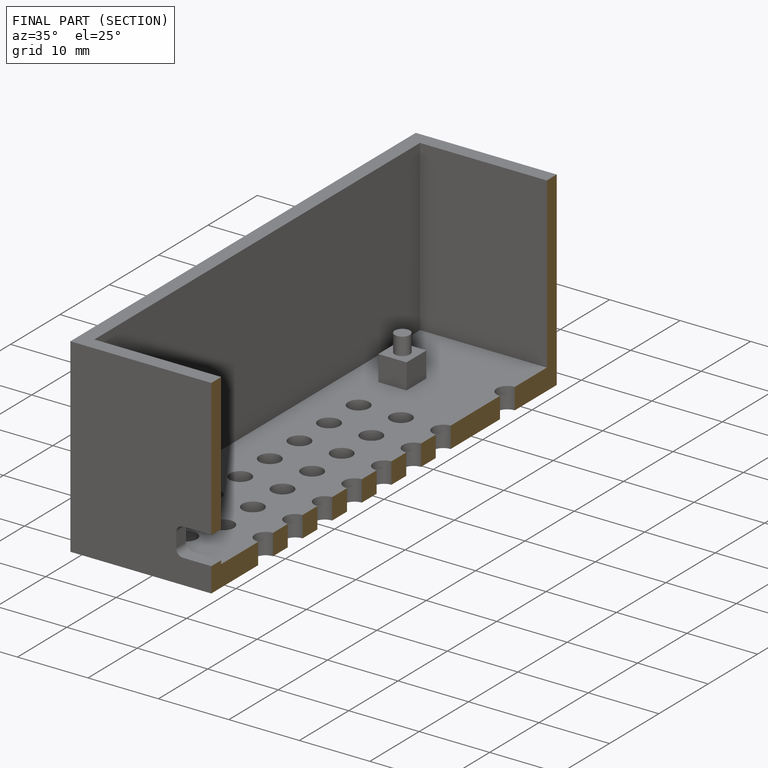
[diagram: finished part — half-section view (interior)]
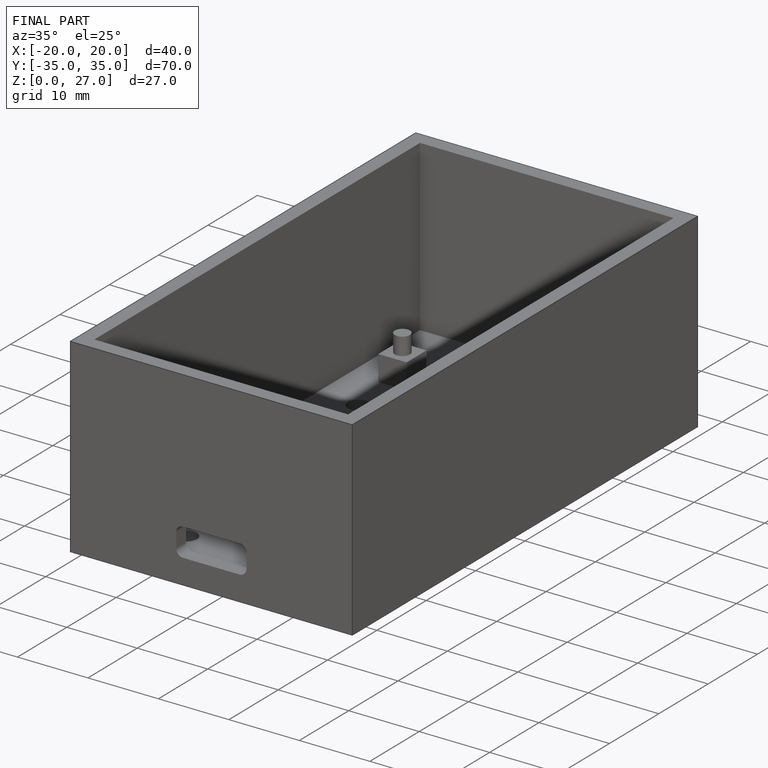
[diagram: finished part — iso view with bounding-box wireframe]
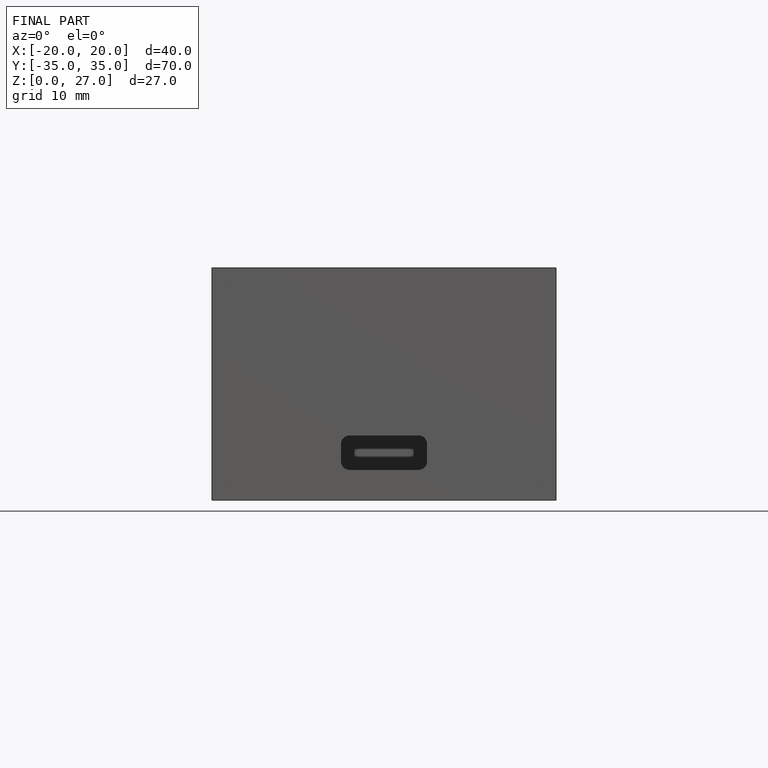
[diagram: finished part — front view with bounding-box wireframe]
